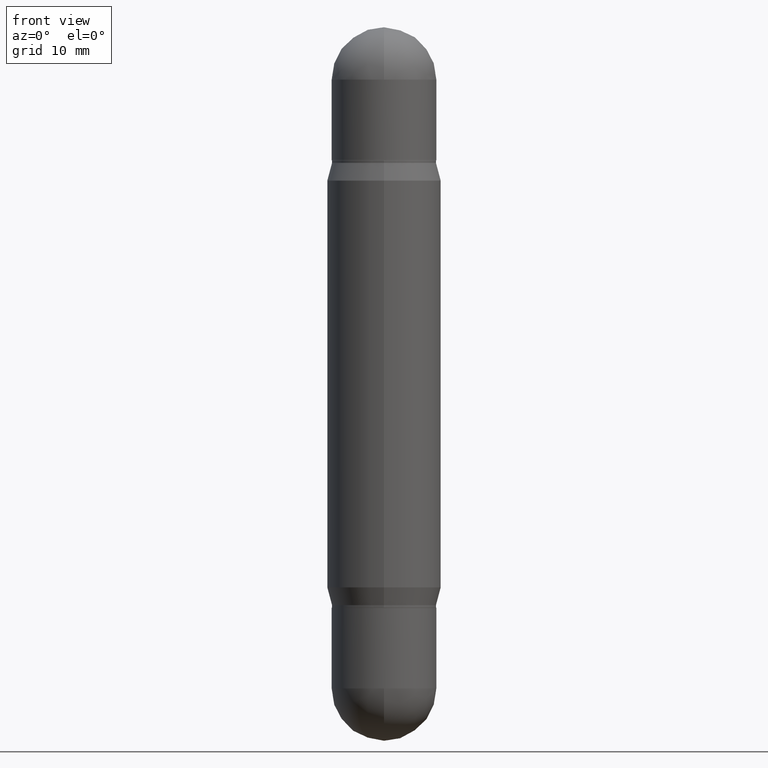
[diagram: clean part render]
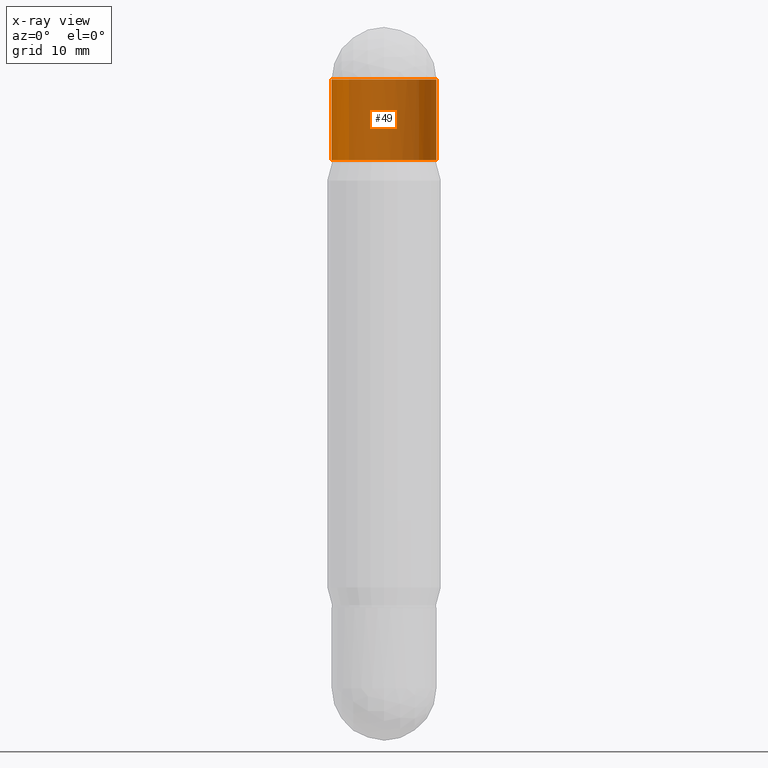
[diagram: x-ray — body ghosted, one internal face saturated and labeled with its STEP entity id]
A machine part, front view, then the same camera in x-ray: the body is ghosted and one INTERNAL B-rep face — a face not visible from any outside direction — is saturated and labeled: STEP entity #49.
In plain terms, the highlighted cylindrical surface (partial cylindrical patch) has radius 5.5004 mm, axis along (-0, -0, -1).
Its self-contained STEP definition (entity closure, byte-faithful):
#30 = DIRECTION ( 'NONE',  ( 1.000000000000000000, -6.982962677686266711E-15, 0.000000000000000000 ) ) ;
#33 = EDGE_CURVE ( 'NONE', #932, #349, #357, .T. ) ;
#49 = ADVANCED_FACE ( 'NONE', ( #633 ), #726, .T. ) ;
#52 = DIRECTION ( 'NONE',  ( 2.445468806185136597E-29, 3.479614466977828254E-15, 1.000000000000000000 ) ) ;
#66 = CARTESIAN_POINT ( 'NONE',  ( 6.691414020924079206E-29, -7.710307624460063053E-16, -0.2165500000000001868 ) ) ;
#76 = ORIENTED_EDGE ( 'NONE', *, *, #1087, .F. ) ;
#91 = ORIENTED_EDGE ( 'NONE', *, *, #33, .T. ) ;
#100 = CIRCLE ( 'NONE', #499, 0.2165500000000001035 ) ;
#151 = LINE ( 'NONE', #842, #752 ) ;
#186 = LINE ( 'NONE', #601, #1041 ) ;
#269 = VERTEX_POINT ( 'NONE', #907 ) ;
#296 = CARTESIAN_POINT ( 'NONE',  ( 0.2165500000000000758, -3.447644311673096437E-15, -0.5512000000000001343 ) ) ;
#330 = DIRECTION ( 'NONE',  ( -2.445468806185136877E-29, -3.479614466977828648E-15, -1.000000000000000000 ) ) ;
#332 = CARTESIAN_POINT ( 'NONE',  ( -0.2165500000000000758, 1.323835882843561036E-16, -0.5512000000000001343 ) ) ;
#349 = VERTEX_POINT ( 'NONE', #332 ) ;
#357 = CIRCLE ( 'NONE', #893, 0.2165500000000000758 ) ;
#414 = AXIS2_PLACEMENT_3D ( 'NONE', #66, #481, #1097 ) ;
#424 = ORIENTED_EDGE ( 'NONE', *, *, #817, .F. ) ;
#456 = ORIENTED_EDGE ( 'NONE', *, *, #1054, .F. ) ;
#465 = DIRECTION ( 'NONE',  ( -2.445468806185136597E-29, -3.479614466977828254E-15, -1.000000000000000000 ) ) ;
#481 = DIRECTION ( 'NONE',  ( 2.445468806185136597E-29, 3.479614466977828254E-15, 1.000000000000000000 ) ) ;
#492 = DIRECTION ( 'NONE',  ( 1.000000000000000000, -6.982962677686265922E-15, 0.000000000000000000 ) ) ;
#499 = AXIS2_PLACEMENT_3D ( 'NONE', #656, #52, #492 ) ;
#531 = DIRECTION ( 'NONE',  ( -2.445468806185136877E-29, -3.479614466977828648E-15, -1.000000000000000000 ) ) ;
#543 = CARTESIAN_POINT ( 'NONE',  ( 5.873037884934223228E-29, -1.935483743820134825E-15, -0.5512000000000001343 ) ) ;
#601 = CARTESIAN_POINT ( 'NONE',  ( -0.2165500000000001035, -8.806485006296660292E-15, -2.952799999999999869 ) ) ;
#633 = FACE_OUTER_BOUND ( 'NONE', #875, .T. ) ;
#656 = CARTESIAN_POINT ( 'NONE',  ( 6.691414020924079206E-29, -7.710307624460063053E-16, -0.2165500000000001868 ) ) ;
#676 = ORIENTED_EDGE ( 'NONE', *, *, #1076, .T. ) ;
#711 = VERTEX_POINT ( 'NONE', #760 ) ;
#726 = CYLINDRICAL_SURFACE ( 'NONE', #732, 0.2165500000000001035 ) ;
#732 = AXIS2_PLACEMENT_3D ( 'NONE', #970, #465, #784 ) ;
#752 = VECTOR ( 'NONE', #330, 39.37007874015748143 ) ;
#760 = CARTESIAN_POINT ( 'NONE',  ( 0.2165500000000001035, -2.865417820986029909E-15, -0.2165500000000001868 ) ) ;
#784 = DIRECTION ( 'NONE',  ( 1.000000000000000000, -6.982962677686270655E-15, 0.000000000000000000 ) ) ;
#797 = CARTESIAN_POINT ( 'NONE',  ( 1.512160567853029651E-15, 0.2165499999999994929, -0.2165500000000009362 ) ) ;
#817 = EDGE_CURVE ( 'NONE', #269, #349, #186, .T. ) ;
#842 = CARTESIAN_POINT ( 'NONE',  ( 0.2165500000000001035, -1.180428641556704882E-14, -2.952799999999999869 ) ) ;
#875 = EDGE_LOOP ( 'NONE', ( #424, #76, #456, #676, #91 ) ) ;
#890 = DIRECTION ( 'NONE',  ( 2.445468806185136597E-29, 3.479614466977828254E-15, 1.000000000000000000 ) ) ;
#893 = AXIS2_PLACEMENT_3D ( 'NONE', #543, #890, #30 ) ;
#907 = CARTESIAN_POINT ( 'NONE',  ( -0.2165500000000001035, 1.323835882843576813E-16, -0.2165500000000001868 ) ) ;
#927 = VERTEX_POINT ( 'NONE', #797 ) ;
#932 = VERTEX_POINT ( 'NONE', #296 ) ;
#970 = CARTESIAN_POINT ( 'NONE',  ( 0.000000000000000000, -1.029212584771408642E-14, -2.952799999999999869 ) ) ;
#1006 = CIRCLE ( 'NONE', #414, 0.2165500000000001035 ) ;
#1041 = VECTOR ( 'NONE', #531, 39.37007874015748143 ) ;
#1054 = EDGE_CURVE ( 'NONE', #711, #927, #100, .T. ) ;
#1076 = EDGE_CURVE ( 'NONE', #711, #932, #151, .T. ) ;
#1087 = EDGE_CURVE ( 'NONE', #927, #269, #1006, .T. ) ;
#1097 = DIRECTION ( 'NONE',  ( 1.000000000000000000, -6.982962677686265922E-15, 0.000000000000000000 ) ) ;